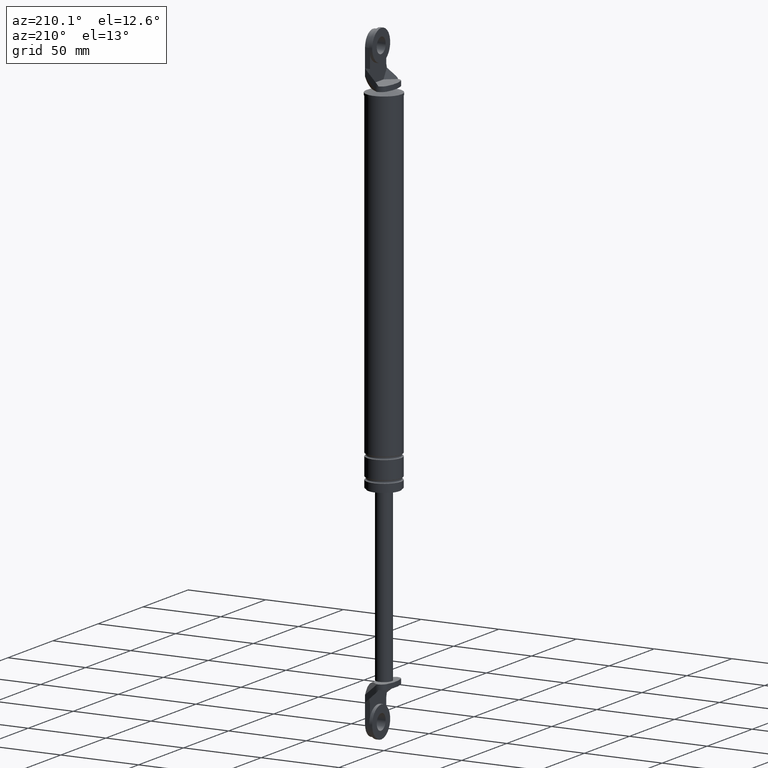
[diagram: clean part render]
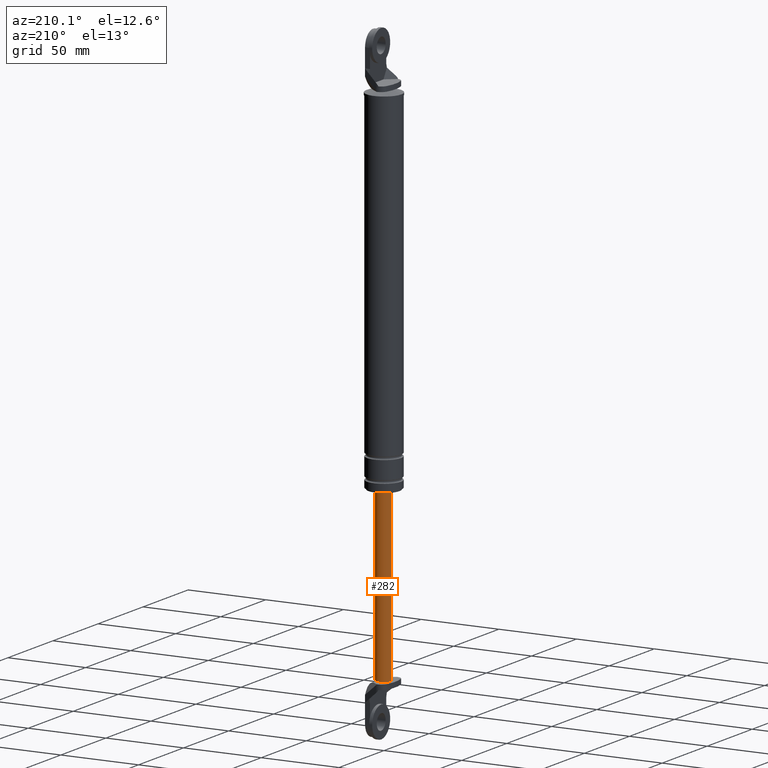
[diagram: same view with one face highlighted and labeled with its STEP entity id]
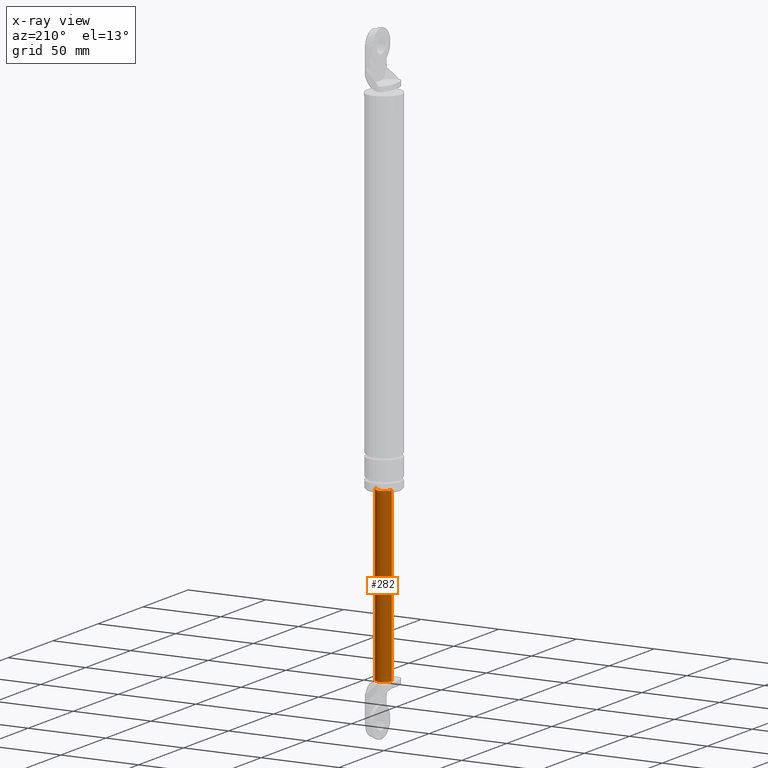
[diagram: x-ray of the same camera — body ghosted, the highlighted face saturated]
A machine part, auxiliary view. The second image highlights one B-rep face of the part: STEP entity #282.
The next image is the same camera in x-ray: the body ghosted, the highlighted face saturated — about 0% of this face is hidden behind the body in this view.
In plain terms, the highlighted cylindrical surface (edge-blend (fillet) strip) has radius 5 mm, axis along (0, 0, 1).
Its self-contained STEP definition (entity closure, byte-faithful):
#282=ADVANCED_FACE('',(#1077),#1076,.T.);
#1076=CYLINDRICAL_SURFACE('',#1745,5.00000000000E+000);
#1077=FACE_OUTER_BOUND('',#1746,.T.);
#1742=CARTESIAN_POINT('',(0.00000000000E+000,3.58204186421E-014,0.00000000000E+000));
#1743=DIRECTION('',(-0.00000000000E+000,-0.00000000000E+000,1.00000000000E+000));
#1744=DIRECTION('',(1.00000000000E+000,0.00000000000E+000,0.00000000000E+000));
#1745=AXIS2_PLACEMENT_3D('',#1742,#1743,#1744);
#1746=EDGE_LOOP('',(#2140,#2141,#2142,#2143,#2144));
#2140=ORIENTED_EDGE('',*,*,#2318,.F.);
#2141=ORIENTED_EDGE('',*,*,#2352,.F.);
#2142=ORIENTED_EDGE('',*,*,#2322,.F.);
#2143=ORIENTED_EDGE('',*,*,#2351,.F.);
#2144=ORIENTED_EDGE('',*,*,#2353,.T.);
#2318=EDGE_CURVE('',#3418,#3417,#3425,.T.);
#2322=EDGE_CURVE('',#3446,#3453,#3454,.T.);
#2351=EDGE_CURVE('',#3633,#3446,#3640,.T.);
#2352=EDGE_CURVE('',#3453,#3418,#3646,.T.);
#2353=EDGE_CURVE('',#3633,#3417,#3652,.T.);
#3417=VERTEX_POINT('',#4322);
#3418=VERTEX_POINT('',#4323);
#3425=CIRCLE('',#4331,5.00000000000E+000);
#3446=VERTEX_POINT('',#4342);
#3453=VERTEX_POINT('',#4346);
#3454=CIRCLE('',#4350,5.00000000000E+000);
#3633=VERTEX_POINT('',#4449);
#3640=CIRCLE('',#4457,5.00000000000E+000);
#3646=(BOUNDED_CURVE() B_SPLINE_CURVE(1,(#4458,#4459),.UNSPECIFIED.,.F.,.F.) B_SPLINE_CURVE_WITH_KNOTS((2,2),(7.75193799282E-002,9.22480620316E-001),.UNSPECIFIED.) CURVE() GEOMETRIC_REPRESENTATION_ITEM() RATIONAL_B_SPLINE_CURVE((1.00000000000E+000,1.00000000000E+000)) REPRESENTATION_ITEM('') );
#3652=(BOUNDED_CURVE() B_SPLINE_CURVE(1,(#4460,#4461),.UNSPECIFIED.,.F.,.F.) B_SPLINE_CURVE_WITH_KNOTS((2,2),(7.75193798450E-002,9.22480620155E-001),.UNSPECIFIED.) CURVE() GEOMETRIC_REPRESENTATION_ITEM() RATIONAL_B_SPLINE_CURVE((7.50000000000E-001,7.50000000000E-001)) REPRESENTATION_ITEM('') );
#4322=CARTESIAN_POINT('',(-5.00000000000E+000,3.58204186421E-014,-1.40000015000E+002));
#4323=CARTESIAN_POINT('',(5.00000000000E+000,3.61192557345E-014,-1.40000015000E+002));
#4328=CARTESIAN_POINT('',(0.00000000000E+000,3.58204186421E-014,-1.40000015000E+002));
#4329=DIRECTION('',(0.00000000000E+000,0.00000000000E+000,1.00000000000E+000));
#4330=DIRECTION('',(-1.00000000000E+000,-1.22460635382E-016,0.00000000000E+000));
#4331=AXIS2_PLACEMENT_3D('',#4328,#4329,#4330);
#4342=CARTESIAN_POINT('',(2.00000000000E+000,4.58257569496E+000,-2.49000015000E+002));
#4346=CARTESIAN_POINT('',(5.00000000000E+000,1.01515834226E-011,-2.49000015000E+002));
#4347=CARTESIAN_POINT('',(0.00000000000E+000,3.58204186421E-014,-2.49000015000E+002));
#4348=DIRECTION('',(0.00000000000E+000,0.00000000000E+000,-1.00000000000E+000));
#4349=DIRECTION('',(4.00000000000E-001,9.16515138991E-001,0.00000000000E+000));
#4350=AXIS2_PLACEMENT_3D('',#4347,#4348,#4349);
#4449=CARTESIAN_POINT('',(-5.00000000000E+000,8.97827335911E-007,-2.49000015000E+002));
#4454=CARTESIAN_POINT('',(0.00000000000E+000,3.58204186421E-014,-2.49000015000E+002));
#4455=DIRECTION('',(0.00000000000E+000,0.00000000000E+000,-1.00000000000E+000));
#4456=DIRECTION('',(1.00000000000E+000,-0.00000000000E+000,-0.00000000000E+000));
#4457=AXIS2_PLACEMENT_3D('',#4454,#4455,#4456);
#4458=CARTESIAN_POINT('',(5.00000000000E+000,3.58204186421E-014,-2.49000014989E+002));
#4459=CARTESIAN_POINT('',(5.00000000000E+000,3.58204186421E-014,-1.40000014979E+002));
#4460=CARTESIAN_POINT('',(-5.00000000000E+000,3.55271367880E-014,-2.49000015000E+002));
#4461=CARTESIAN_POINT('',(-5.00000000000E+000,3.55271367880E-014,-1.40000015000E+002));